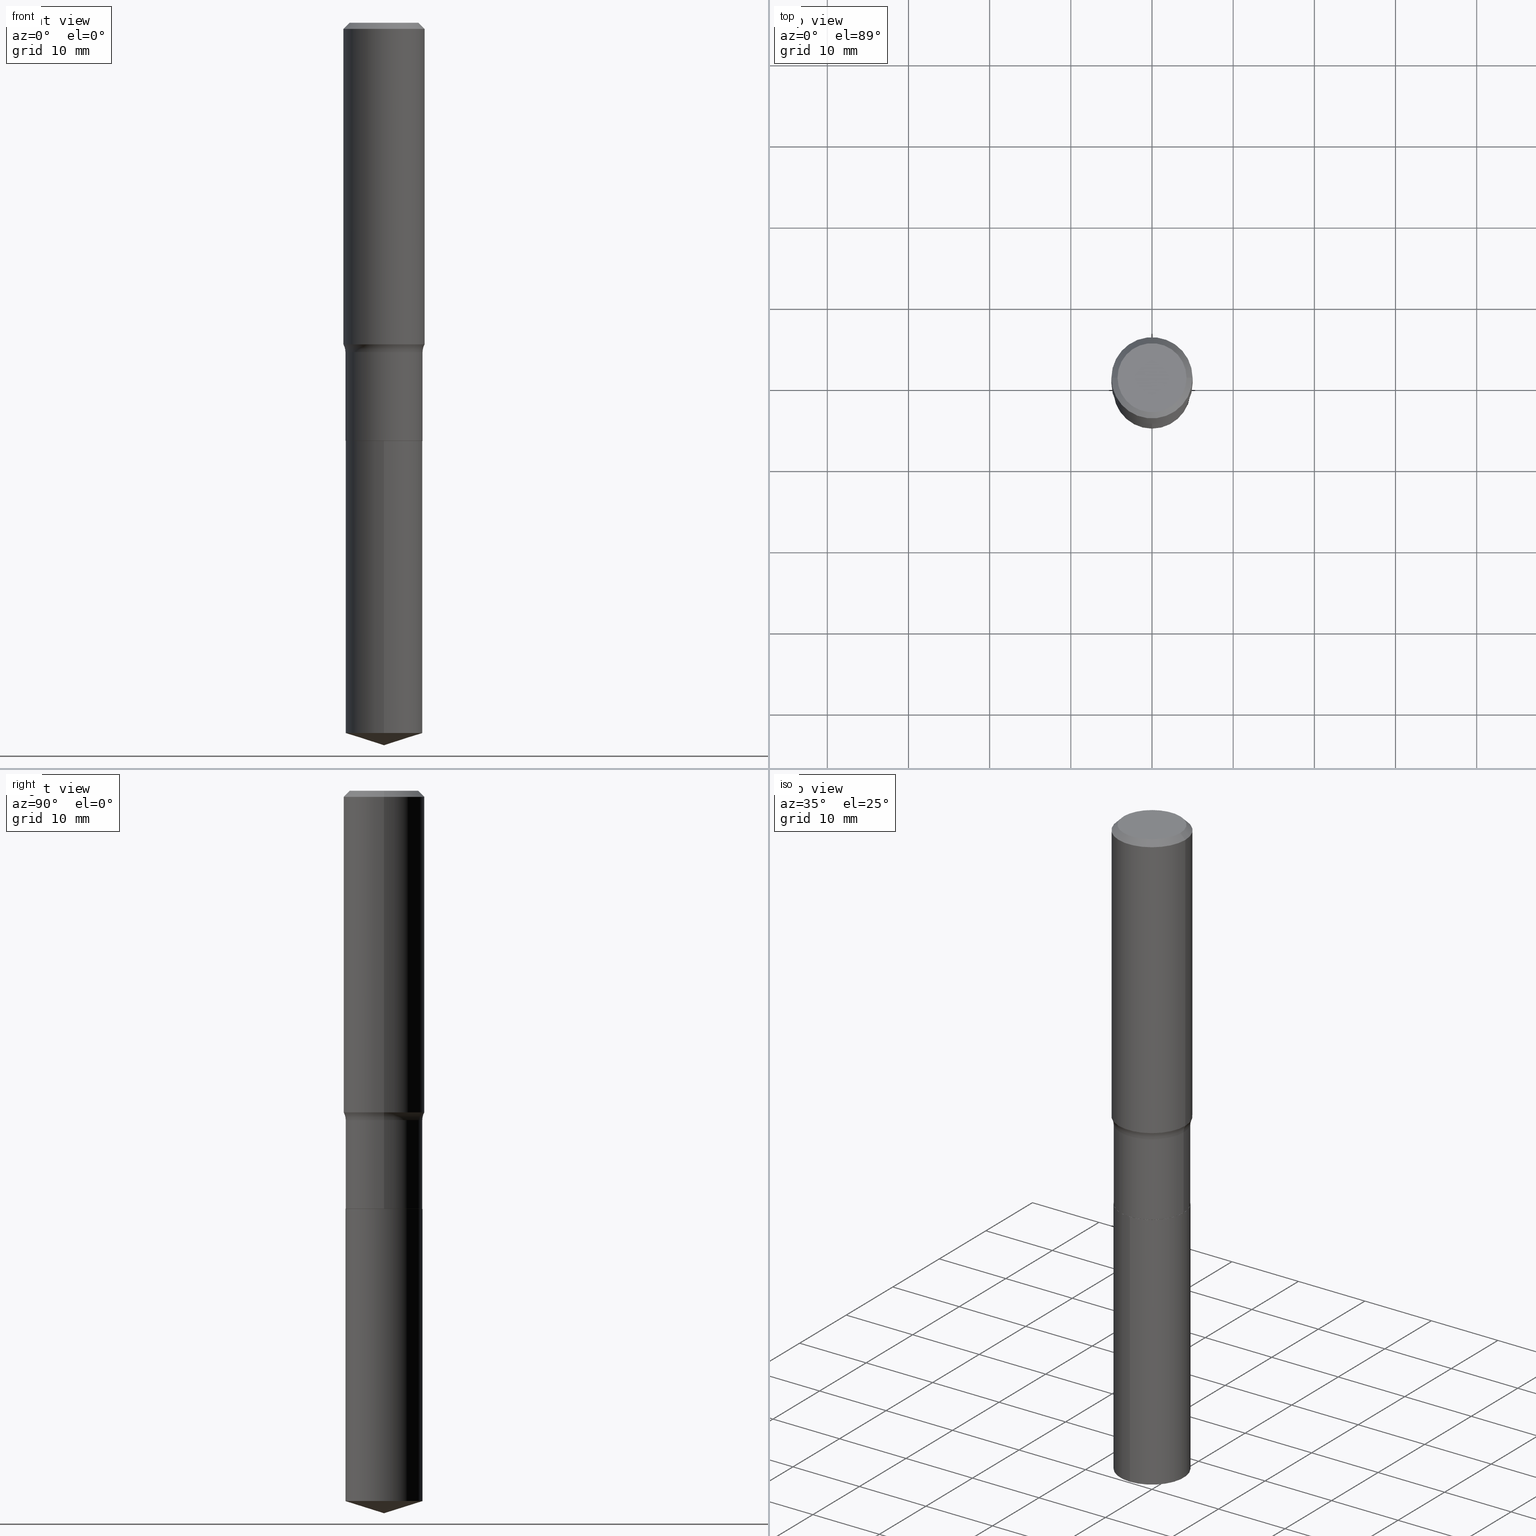
[diagram: canonical four-view strip — front | top / right | iso, engineering-drawing reading convention]
A machine part, canonical four-view strip (front | top / right | iso — engineering-drawing reading convention). The complete STEP part file that produces these views, byte-faithful:
ISO-10303-21;
HEADER;
FILE_DESCRIPTION (( 'STEP AP203' ),
    '1' );
FILE_NAME ('63187.STEP',
    '2024-04-19T15:00:19',
    ( '' ),
    ( '' ),
    'SwSTEP 2.0',
    'SolidWorks 2023',
    '' );
FILE_SCHEMA (( 'CONFIG_CONTROL_DESIGN' ));
ENDSEC;

DATA;
#1 = DIRECTION ( 'NONE',  ( -2.445468806185136597E-29, 3.491481338843145583E-15, 1.000000000000000000 ) ) ;
#2 = CARTESIAN_POINT ( 'NONE',  ( -0.1869999999999999996, -4.998547566380161442E-15, -2.027000000000000135 ) ) ;
#3 = VERTEX_POINT ( 'NONE', #422 ) ;
#4 = CARTESIAN_POINT ( 'NONE',  ( 7.220858017463209485E-31, -1.030947152326916609E-16, -0.02952750000000019595 ) ) ;
#5 = VERTEX_POINT ( 'NONE', #268 ) ;
#6 = CARTESIAN_POINT ( 'NONE',  ( 1.328714915871471555E-15, 0.1869999999999929496, -2.027500000000000302 ) ) ;
#7 = CALENDAR_DATE ( 2024, 19, 4 ) ;
#8 = ORIENTED_EDGE ( 'NONE', *, *, #434, .T. ) ;
#9 = FACE_OUTER_BOUND ( 'NONE', #384, .T. ) ;
#10 = EDGE_CURVE ( 'NONE', #168, #40, #382, .T. ) ;
#11 = EDGE_LOOP ( 'NONE', ( #416, #377, #58, #98 ) ) ;
#12 = DIRECTION ( 'NONE',  ( 1.000000000000000000, -6.982962677686265133E-15, 0.000000000000000000 ) ) ;
#13 = COORDINATED_UNIVERSAL_TIME_OFFSET ( 5, 0, .BEHIND. ) ;
#14 = AXIS2_PLACEMENT_3D ( 'NONE', #125, #261, #35 ) ;
#15 = AXIS2_PLACEMENT_3D ( 'NONE', #197, #381, #356 ) ;
#16 = FACE_OUTER_BOUND ( 'NONE', #170, .T. ) ;
#17 = PERSON_AND_ORGANIZATION_ROLE ( 'creator' ) ;
#18 = ADVANCED_FACE ( 'NONE', ( #147 ), #56, .T. ) ;
#19 = EDGE_CURVE ( 'NONE', #258, #355, #324, .T. ) ;
#20 = ORIENTED_EDGE ( 'NONE', *, *, #212, .T. ) ;
#21 = FACE_OUTER_BOUND ( 'NONE', #424, .T. ) ;
#22 = ORIENTED_EDGE ( 'NONE', *, *, #172, .T. ) ;
#23 = AXIS2_PLACEMENT_3D ( 'NONE', #429, #486, #225 ) ;
#24 =( LENGTH_UNIT ( ) NAMED_UNIT ( * ) SI_UNIT ( $, .METRE. ) );
#25 = EDGE_CURVE ( 'NONE', #335, #68, #336, .T. ) ;
#26 =( NAMED_UNIT ( * ) SI_UNIT ( $, .STERADIAN. ) SOLID_ANGLE_UNIT ( ) );
#27 = DIRECTION ( 'NONE',  ( -2.445146056917443157E-29, 3.491943534164230520E-15, 1.000000000000000000 ) ) ;
#28 = ORIENTED_EDGE ( 'NONE', *, *, #82, .T. ) ;
#29 = AXIS2_PLACEMENT_3D ( 'NONE', #88, #57, #450 ) ;
#30 = EDGE_CURVE ( 'NONE', #355, #370, #371, .T. ) ;
#31 = COORDINATED_UNIVERSAL_TIME_OFFSET ( 5, 0, .BEHIND. ) ;
#32 = LINE ( 'NONE', #179, #207 ) ;
#33 = AXIS2_PLACEMENT_3D ( 'NONE', #259, #63, #293 ) ;
#34 = ORIENTED_EDGE ( 'NONE', *, *, #223, .T. ) ;
#35 = DIRECTION ( 'NONE',  ( 1.000000000000000000, -6.982962677686266711E-15, 0.000000000000000000 ) ) ;
#36 = DIRECTION ( 'NONE',  ( -0.7071067811864267805, 7.493145998869918709E-15, 0.7071067811866682540 ) ) ;
#37 = ORIENTED_EDGE ( 'NONE', *, *, #46, .T. ) ;
#38 = DIRECTION ( 'NONE',  ( -2.445146056917442877E-29, 3.491943534164230520E-15, 1.000000000000000000 ) ) ;
#39 = VERTEX_POINT ( 'NONE', #174 ) ;
#40 = VERTEX_POINT ( 'NONE', #169 ) ;
#41 = CARTESIAN_POINT ( 'NONE',  ( 0.000000000000000000, 0.000000000000000000, 0.000000000000000000 ) ) ;
#42 = ADVANCED_FACE ( 'NONE', ( #334 ), #201, .F. ) ;
#43 = ORIENTED_EDGE ( 'NONE', *, *, #444, .T. ) ;
#44 = FACE_OUTER_BOUND ( 'NONE', #316, .T. ) ;
#45 = DIRECTION ( 'NONE',  ( -1.000000000000000000, 6.982962677686266711E-15, 0.000000000000000000 ) ) ;
#46 = EDGE_CURVE ( 'NONE', #39, #474, #436, .T. ) ;
#47 = AXIS2_PLACEMENT_3D ( 'NONE', #368, #481, #178 ) ;
#48 = DIRECTION ( 'NONE',  ( -2.445468806185136597E-29, 3.491481338843145583E-15, 1.000000000000000000 ) ) ;
#49 = AXIS2_PLACEMENT_3D ( 'NONE', #471, #48, #320 ) ;
#50 = CC_DESIGN_PERSON_AND_ORGANIZATION_ASSIGNMENT ( #72, #228, ( #112 ) ) ;
#51 = CARTESIAN_POINT ( 'NONE',  ( 0.2649999999999999578, -7.427777400254900530E-15, -1.597399999999999709 ) ) ;
#52 = ORIENTED_EDGE ( 'NONE', *, *, #206, .T. ) ;
#53 = CARTESIAN_POINT ( 'NONE',  ( -0.1968500000000001082, 1.398703375343757985E-15, -9.682923725166787881E-30 ) ) ;
#54 = CC_DESIGN_PERSON_AND_ORGANIZATION_ASSIGNMENT ( #301, #485, ( #278 ) ) ;
#55 = ORIENTED_EDGE ( 'NONE', *, *, #313, .T. ) ;
#56 = CONICAL_SURFACE ( 'NONE', #191, 124.8659371009148060, 1.265363707695891016 ) ;
#57 = DIRECTION ( 'NONE',  ( -2.445146056917442877E-29, 3.491943534164230520E-15, 1.000000000000000000 ) ) ;
#58 = ORIENTED_EDGE ( 'NONE', *, *, #434, .F. ) ;
#59 = DIRECTION ( 'NONE',  ( -2.445468806185136597E-29, 3.491481338843145583E-15, 1.000000000000000000 ) ) ;
#60 = APPROVAL_ROLE ( '' ) ;
#61 = CARTESIAN_POINT ( 'NONE',  ( -8.769739114905202886E-28, 1.252436080478850042E-13, 35.86617874015747987 ) ) ;
#62 = ORIENTED_EDGE ( 'NONE', *, *, #162, .F. ) ;
#63 = DIRECTION ( 'NONE',  ( 7.105427357601001859E-15, 1.000000000000000000, -3.491481338843145583E-15 ) ) ;
#64 = AXIS2_PLACEMENT_3D ( 'NONE', #239, #217, #280 ) ;
#65 = DIRECTION ( 'NONE',  ( -2.445468806185136597E-29, 3.491481338843145583E-15, 1.000000000000000000 ) ) ;
#66 = CYLINDRICAL_SURFACE ( 'NONE', #15, 0.1869999999999999718 ) ;
#67 = CIRCLE ( 'NONE', #33, 0.07800000000000002764 ) ;
#68 = VERTEX_POINT ( 'NONE', #442 ) ;
#69 = DIRECTION ( 'NONE',  ( 1.000000000000000000, -6.982962677686266711E-15, 0.000000000000000000 ) ) ;
#70 = ORIENTED_EDGE ( 'NONE', *, *, #392, .F. ) ;
#71 = CARTESIAN_POINT ( 'NONE',  ( 0.1864999999999999991, -8.381300953892967589E-15, -2.027500000000000302 ) ) ;
#72 = PERSON_AND_ORGANIZATION ( #437, #396 ) ;
#73 = EDGE_LOOP ( 'NONE', ( #70, #28, #306, #226 ) ) ;
#74 = DIRECTION ( 'NONE',  ( -2.445146056917443157E-29, 3.491943534164230520E-15, 1.000000000000000000 ) ) ;
#75 = EDGE_CURVE ( 'NONE', #168, #445, #379, .T. ) ;
#76 = ORIENTED_EDGE ( 'NONE', *, *, #162, .T. ) ;
#77 = CARTESIAN_POINT ( 'NONE',  ( 4.958188004540364383E-29, -7.078978414504477806E-15, -2.027499999999999858 ) ) ;
#78 = DIRECTION ( 'NONE',  ( -2.445146056917442877E-29, 3.491943534164230520E-15, 1.000000000000000000 ) ) ;
#79 = ADVANCED_FACE ( 'NONE', ( #21 ), #163, .F. ) ;
#80 = PERSON_AND_ORGANIZATION ( #437, #396 ) ;
#81 = PLANE ( 'NONE',  #23 ) ;
#82 = EDGE_CURVE ( 'NONE', #445, #5, #439, .T. ) ;
#83 = AXIS2_PLACEMENT_3D ( 'NONE', #41, #353, #150 ) ;
#84 = VECTOR ( 'NONE', #428, 39.37007874015748143 ) ;
#85 = EDGE_CURVE ( 'NONE', #249, #40, #404, .T. ) ;
#86 = CARTESIAN_POINT ( 'NONE',  ( 0.1968500000000000527, -1.453583746094018101E-15, -0.02952750000000019595 ) ) ;
#87 = ORIENTED_EDGE ( 'NONE', *, *, #350, .F. ) ;
#88 = CARTESIAN_POINT ( 'NONE',  ( 4.958188004540364383E-29, -7.078978414504477806E-15, -2.027499999999999858 ) ) ;
#89 = AXIS2_PLACEMENT_3D ( 'NONE', #296, #1, #267 ) ;
#90 = ORIENTED_EDGE ( 'NONE', *, *, #290, .F. ) ;
#91 = DIRECTION ( 'NONE',  ( -2.445468806185136597E-29, 3.491481338843145583E-15, 1.000000000000000000 ) ) ;
#92 = APPLICATION_PROTOCOL_DEFINITION ( 'international standard', 'config_control_design', 1994, #159 ) ;
#93 = CARTESIAN_POINT ( 'NONE',  ( 4.958188004540364383E-29, -7.078978414504477806E-15, -2.027499999999999858 ) ) ;
#94 = ORIENTED_EDGE ( 'NONE', *, *, #483, .T. ) ;
#95 = DIRECTION ( 'NONE',  ( -1.000000000000000000, 6.982962677686265922E-15, -4.876176775795935793E-29 ) ) ;
#96 = CARTESIAN_POINT ( 'NONE',  ( 4.958188004540364383E-29, -7.078978414504478595E-15, -2.027500000000000302 ) ) ;
#97 = DIRECTION ( 'NONE',  ( -2.445146056917442877E-29, 3.491943534164230520E-15, 1.000000000000000000 ) ) ;
#98 = ORIENTED_EDGE ( 'NONE', *, *, #281, .F. ) ;
#99 = DIRECTION ( 'NONE',  ( -6.982962677686266711E-15, -1.000000000000000000, 2.921762560068730595E-15 ) ) ;
#100 = CONICAL_SURFACE ( 'NONE', #220, 124.8659371009148060, 1.265363707695891016 ) ;
#101 = LOCAL_TIME ( 11, 0, 19.00000000000000000, #192 ) ;
#102 = DIRECTION ( 'NONE',  ( 1.000000000000000000, -6.982962677686268288E-15, 0.000000000000000000 ) ) ;
#103 = CARTESIAN_POINT ( 'NONE',  ( 0.1864999999999999991, -8.381300953892967589E-15, -2.027500000000000302 ) ) ;
#104 = VECTOR ( 'NONE', #361, 39.37007874015748143 ) ;
#105 = ORIENTED_EDGE ( 'NONE', *, *, #82, .F. ) ;
#106 = DIRECTION ( 'NONE',  ( 6.776566513254256560E-15, 0.9537169507482285979, 0.3007057995042677900 ) ) ;
#107 = ADVANCED_FACE ( 'NONE', ( #16 ), #81, .F. ) ;
#108 = ORIENTED_EDGE ( 'NONE', *, *, #212, .F. ) ;
#109 = EDGE_LOOP ( 'NONE', ( #105, #124, #410, #55 ) ) ;
#110 = PERSON_AND_ORGANIZATION ( #437, #396 ) ;
#111 = ORIENTED_EDGE ( 'NONE', *, *, #152, .F. ) ;
#112 = PRODUCT_DEFINITION ( 'UNKNOWN', '', #190, #480 ) ;
#113 = FACE_OUTER_BOUND ( 'NONE', #251, .T. ) ;
#114 = CARTESIAN_POINT ( 'NONE',  ( -0.1673224999999999851, 1.219954130253505460E-15, 4.096137381439757534E-18 ) ) ;
#115 = CARTESIAN_POINT ( 'NONE',  ( 4.958188004540364383E-29, -7.078978414504478595E-15, -2.027500000000000302 ) ) ;
#116 = ADVANCED_FACE ( 'NONE', ( #200 ), #490, .T. ) ;
#117 = VECTOR ( 'NONE', #453, 39.37007874015748143 ) ;
#118 = ORIENTED_EDGE ( 'NONE', *, *, #392, .T. ) ;
#119 = LOCAL_TIME ( 11, 0, 19.00000000000000000, #315 ) ;
#120 = VECTOR ( 'NONE', #27, 39.37007874015748143 ) ;
#121 = ADVANCED_FACE ( 'NONE', ( #157 ), #100, .T. ) ;
#122 = AXIS2_PLACEMENT_3D ( 'NONE', #215, #38, #99 ) ;
#123 = DIRECTION ( 'NONE',  ( 1.000000000000000000, -6.982962677686265922E-15, 4.876176775795935793E-29 ) ) ;
#124 = ORIENTED_EDGE ( 'NONE', *, *, #75, .F. ) ;
#125 = CARTESIAN_POINT ( 'NONE',  ( 7.220858017463209485E-31, -1.030947152326916609E-16, -0.02952750000000019595 ) ) ;
#126 = EDGE_LOOP ( 'NONE', ( #196, #52, #94, #388 ) ) ;
#127 = CARTESIAN_POINT ( 'NONE',  ( 0.000000000000000000, 0.000000000000000000, 0.000000000000000000 ) ) ;
#128 = DIRECTION ( 'NONE',  ( -2.445468806185136597E-29, 3.491481338843145583E-15, 1.000000000000000000 ) ) ;
#129 = CIRCLE ( 'NONE', #14, 0.1968500000000000527 ) ;
#130 = VECTOR ( 'NONE', #420, 39.37007874015748143 ) ;
#131 = TOROIDAL_SURFACE ( 'NONE', #310, 0.2649999999999999578, 0.07800000000000004152 ) ;
#132 = CYLINDRICAL_SURFACE ( 'NONE', #47, 0.1968500000000001082 ) ;
#133 = DIRECTION ( 'NONE',  ( -2.445146056917442877E-29, 3.491943534164230520E-15, 1.000000000000000000 ) ) ;
#134 = APPROVAL ( #256, 'UNSPECIFIED' ) ;
#135 = ORIENTED_EDGE ( 'NONE', *, *, #483, .F. ) ;
#136 = LENGTH_MEASURE_WITH_UNIT ( LENGTH_MEASURE( 0.02539999999999999897 ), #24 );
#137 = DIRECTION ( 'NONE',  ( -2.445468806185136597E-29, 3.491481338843145583E-15, 1.000000000000000000 ) ) ;
#138 = EDGE_LOOP ( 'NONE', ( #467, #22, #408, #403 ) ) ;
#139 = CARTESIAN_POINT ( 'NONE',  ( 0.1869999999999999718, -1.305814020727331607E-15, 9.118450570738398307E-30 ) ) ;
#140 = CARTESIAN_POINT ( 'NONE',  ( 0.1869999999999999996, -8.383046694562388303E-15, -2.027000000000000135 ) ) ;
#141 = FACE_OUTER_BOUND ( 'NONE', #73, .T. ) ;
#142 = CARTESIAN_POINT ( 'NONE',  ( 8.424033695572536525E-29, -1.202859580728641692E-14, -3.444939126479630076 ) ) ;
#143 = DIRECTION ( 'NONE',  ( -2.445468806185136597E-29, 3.491481338843145583E-15, 1.000000000000000000 ) ) ;
#144 = ADVANCED_FACE ( 'NONE', ( #113 ), #131, .F. ) ;
#145 = CIRCLE ( 'NONE', #89, 0.1869999999999999440 ) ;
#146 = AXIS2_PLACEMENT_3D ( 'NONE', #302, #318, #205 ) ;
#147 = FACE_OUTER_BOUND ( 'NONE', #482, .T. ) ;
#148 = DATE_AND_TIME ( #393, #161 ) ;
#149 = ORIENTED_EDGE ( 'NONE', *, *, #172, .F. ) ;
#150 = DIRECTION ( 'NONE',  ( 1.000000000000000000, -6.982962677686266711E-15, 4.876176775795935793E-29 ) ) ;
#151 = PERSON_AND_ORGANIZATION ( #437, #396 ) ;
#152 = EDGE_CURVE ( 'NONE', #189, #413, #264, .T. ) ;
#153 = ORIENTED_EDGE ( 'NONE', *, *, #300, .F. ) ;
#154 = CARTESIAN_POINT ( 'NONE',  ( -0.1968500000000001915, -4.046115952304854648E-15, -1.559458235412674032 ) ) ;
#155 = APPROVAL_STATUS ( 'not_yet_approved' ) ;
#156 = CIRCLE ( 'NONE', #49, 0.1869999999999999440 ) ;
#157 = FACE_OUTER_BOUND ( 'NONE', #331, .T. ) ;
#158 = DATE_AND_TIME ( #7, #101 ) ;
#159 = APPLICATION_CONTEXT ( 'configuration controlled 3d designs of mechanical parts and assemblies' ) ;
#160 = ADVANCED_FACE ( 'NONE', ( #241 ), #394, .T. ) ;
#161 = LOCAL_TIME ( 11, 0, 19.00000000000000000, #277 ) ;
#162 = EDGE_CURVE ( 'NONE', #3, #474, #156, .T. ) ;
#163 = PLANE ( 'NONE',  #287 ) ;
#164 = AXIS2_PLACEMENT_3D ( 'NONE', #345, #143, #181 ) ;
#165 = CC_DESIGN_APPROVAL ( #454, ( #415 ) ) ;
#166 = CIRCLE ( 'NONE', #469, 0.1968500000000000527 ) ;
#167 =( CONVERSION_BASED_UNIT ( 'INCH', #136 ) LENGTH_UNIT ( ) NAMED_UNIT ( #430 ) );
#168 = VERTEX_POINT ( 'NONE', #114 ) ;
#169 = CARTESIAN_POINT ( 'NONE',  ( -0.1968500000000000527, -1.375253646096893681E-15, -0.02952750000000019595 ) ) ;
#170 = EDGE_LOOP ( 'NONE', ( #8, #211 ) ) ;
#171 = FACE_OUTER_BOUND ( 'NONE', #488, .T. ) ;
#172 = EDGE_CURVE ( 'NONE', #355, #258, #369, .T. ) ;
#173 = MECHANICAL_CONTEXT ( 'NONE', #476, 'mechanical' ) ;
#174 = CARTESIAN_POINT ( 'NONE',  ( 0.1968500000000001915, -6.819415530751155622E-15, -1.559458235412674032 ) ) ;
#175 = ORIENTED_EDGE ( 'NONE', *, *, #290, .T. ) ;
#176 =( GEOMETRIC_REPRESENTATION_CONTEXT ( 3 ) GLOBAL_UNCERTAINTY_ASSIGNED_CONTEXT ( ( #295 ) ) GLOBAL_UNIT_ASSIGNED_CONTEXT ( ( #167, #183, #26 ) ) REPRESENTATION_CONTEXT ( 'NONE', 'WORKASPACE' ) );
#177 = MANIFOLD_SOLID_BREP ( 'Body-Move/Copy2[1]', #478 ) ;
#178 = DIRECTION ( 'NONE',  ( 1.000000000000000000, -6.982962677686266711E-15, 4.876176775795935793E-29 ) ) ;
#179 = CARTESIAN_POINT ( 'NONE',  ( -0.1864999999999999991, -5.753816212311890965E-15, -2.027500000000000302 ) ) ;
#180 = ORIENTED_EDGE ( 'NONE', *, *, #25, .F. ) ;
#181 = DIRECTION ( 'NONE',  ( 1.000000000000000000, -6.982962677686268288E-15, 0.000000000000000000 ) ) ;
#182 = MANIFOLD_SOLID_BREP ( 'Body-Move/Copy2[2]', #243 ) ;
#183 =( NAMED_UNIT ( * ) PLANE_ANGLE_UNIT ( ) SI_UNIT ( $, .RADIAN. ) );
#184 = CARTESIAN_POINT ( 'NONE',  ( 3.906391871000136996E-29, -5.577292290668039694E-15, -1.597399999999999709 ) ) ;
#185 = CARTESIAN_POINT ( 'NONE',  ( -8.769739114905202886E-28, 1.252436080478850042E-13, 35.86617874015747987 ) ) ;
#186 = CARTESIAN_POINT ( 'NONE',  ( 8.568867493291091707E-29, -1.223354674733104765E-14, -3.503899999999999793 ) ) ;
#187 = EDGE_CURVE ( 'NONE', #189, #3, #375, .T. ) ;
#188 = SHAPE_DEFINITION_REPRESENTATION ( #199, #358 ) ;
#189 = VERTEX_POINT ( 'NONE', #2 ) ;
#190 = PRODUCT_DEFINITION_FORMATION_WITH_SPECIFIED_SOURCE ( 'ANY', '', #278, .NOT_KNOWN. ) ;
#191 = AXIS2_PLACEMENT_3D ( 'NONE', #185, #344, #311 ) ;
#192 = COORDINATED_UNIVERSAL_TIME_OFFSET ( 5, 0, .BEHIND. ) ;
#193 = ORIENTED_EDGE ( 'NONE', *, *, #329, .T. ) ;
#194 = CYLINDRICAL_SURFACE ( 'NONE', #83, 0.1869999999999999718 ) ;
#195 = CALENDAR_DATE ( 2024, 19, 4 ) ;
#196 = ORIENTED_EDGE ( 'NONE', *, *, #85, .F. ) ;
#197 = CARTESIAN_POINT ( 'NONE',  ( 0.000000000000000000, 0.000000000000000000, 0.000000000000000000 ) ) ;
#198 = APPROVAL_STATUS ( 'not_yet_approved' ) ;
#199 = PRODUCT_DEFINITION_SHAPE ( 'NONE', 'NONE',  #112 ) ;
#200 = FACE_OUTER_BOUND ( 'NONE', #126, .T. ) ;
#201 = TOROIDAL_SURFACE ( 'NONE', #325, 0.2649999999999999578, 0.07800000000000004152 ) ;
#202 = SECURITY_CLASSIFICATION_LEVEL ( 'unclassified' ) ;
#203 = AXIS2_PLACEMENT_3D ( 'NONE', #421, #385, #463 ) ;
#204 = VECTOR ( 'NONE', #106, 39.37007874015748143 ) ;
#205 = DIRECTION ( 'NONE',  ( 1.000000000000000000, -6.982962677686266711E-15, 0.000000000000000000 ) ) ;
#206 = EDGE_CURVE ( 'NONE', #249, #39, #427, .T. ) ;
#207 = VECTOR ( 'NONE', #36, 39.37007874015748143 ) ;
#208 = ADVANCED_FACE ( 'NONE', ( #141 ), #456, .T. ) ;
#209 = DIRECTION ( 'NONE',  ( -2.445468806185136597E-29, 3.491481338843145583E-15, 1.000000000000000000 ) ) ;
#210 = ORIENTED_EDGE ( 'NONE', *, *, #75, .T. ) ;
#211 = ORIENTED_EDGE ( 'NONE', *, *, #244, .T. ) ;
#212 = EDGE_CURVE ( 'NONE', #335, #413, #297, .T. ) ;
#213 = DIRECTION ( 'NONE',  ( -2.445468806185136597E-29, 3.491481338843145583E-15, 1.000000000000000000 ) ) ;
#214 = ORIENTED_EDGE ( 'NONE', *, *, #236, .F. ) ;
#215 = CARTESIAN_POINT ( 'NONE',  ( 4.958188004540364383E-29, -7.078978414504477806E-15, -2.027499999999999858 ) ) ;
#216 = PERSON_AND_ORGANIZATION ( #437, #396 ) ;
#217 = DIRECTION ( 'NONE',  ( -2.445468806185136597E-29, 3.491481338843145583E-15, 1.000000000000000000 ) ) ;
#218 = EDGE_LOOP ( 'NONE', ( #367, #34, #214, #108 ) ) ;
#219 = LINE ( 'NONE', #411, #117 ) ;
#220 = AXIS2_PLACEMENT_3D ( 'NONE', #61, #133, #457 ) ;
#221 = CIRCLE ( 'NONE', #399, 0.1673224999999999851 ) ;
#222 = CIRCLE ( 'NONE', #418, 0.1968500000000001915 ) ;
#223 = EDGE_CURVE ( 'NONE', #68, #189, #32, .T. ) ;
#224 = DIRECTION ( 'NONE',  ( -2.445468806185136597E-29, 3.491481338843145583E-15, 1.000000000000000000 ) ) ;
#225 = DIRECTION ( 'NONE',  ( 6.982962677686265922E-15, 1.000000000000000000, -3.491943534164230520E-15 ) ) ;
#226 = ORIENTED_EDGE ( 'NONE', *, *, #10, .F. ) ;
#227 = LINE ( 'NONE', #186, #204 ) ;
#228 = PERSON_AND_ORGANIZATION_ROLE ( 'creator' ) ;
#229 = ORIENTED_EDGE ( 'NONE', *, *, #492, .F. ) ;
#230 = CARTESIAN_POINT ( 'NONE',  ( -1.305814020727282303E-15, -0.1870000000000070772, -2.027499999999999414 ) ) ;
#231 = DATE_AND_TIME ( #282, #283 ) ;
#232 = ORIENTED_EDGE ( 'NONE', *, *, #444, .F. ) ;
#233 = VECTOR ( 'NONE', #74, 39.37007874015748143 ) ;
#234 = CALENDAR_DATE ( 2024, 19, 4 ) ;
#235 = EDGE_LOOP ( 'NONE', ( #314, #448, #229, #135 ) ) ;
#236 = EDGE_CURVE ( 'NONE', #413, #189, #397, .T. ) ;
#237 = CARTESIAN_POINT ( 'NONE',  ( 8.424033695572536525E-29, -1.202859580728641692E-14, -3.444939126479630076 ) ) ;
#238 = DATE_AND_TIME ( #234, #119 ) ;
#239 = CARTESIAN_POINT ( 'NONE',  ( 0.000000000000000000, 0.000000000000000000, 0.000000000000000000 ) ) ;
#240 = PERSON_AND_ORGANIZATION_ROLE ( 'design_supplier' ) ;
#241 = FACE_OUTER_BOUND ( 'NONE', #138, .T. ) ;
#242 = AXIS2_PLACEMENT_3D ( 'NONE', #299, #271, #95 ) ;
#243 = CLOSED_SHELL ( 'NONE', ( #426, #208, #473, #42, #246, #386, #144, #116, #362, #274, #79, #253 ) ) ;
#244 = EDGE_CURVE ( 'NONE', #370, #328, #266, .T. ) ;
#245 = CONICAL_SURFACE ( 'NONE', #203, 0.1968500000000000527, 0.7853981633974459475 ) ;
#246 = ADVANCED_FACE ( 'NONE', ( #44 ), #66, .T. ) ;
#247 = AXIS2_PLACEMENT_3D ( 'NONE', #51, #292, #402 ) ;
#248 = CARTESIAN_POINT ( 'NONE',  ( 1.328714915871436648E-15, 0.1869999999999929496, -2.027500000000000302 ) ) ;
#249 = VERTEX_POINT ( 'NONE', #154 ) ;
#250 = DIRECTION ( 'NONE',  ( 0.7071067811865459074, -7.319954787623251312E-15, -0.7071067811865492381 ) ) ;
#251 = EDGE_LOOP ( 'NONE', ( #90, #87, #37, #263 ) ) ;
#252 = CARTESIAN_POINT ( 'NONE',  ( 0.1673224999999999851, -1.300749711163072594E-15, 4.096137381456741925E-18 ) ) ;
#253 = ADVANCED_FACE ( 'NONE', ( #284 ), #395, .T. ) ;
#254 = CARTESIAN_POINT ( 'NONE',  ( -1.001697619218021790E-46, 1.430158722866389718E-32, 4.096137381448108366E-18 ) ) ;
#255 = ORIENTED_EDGE ( 'NONE', *, *, #236, .T. ) ;
#256 = APPROVAL_STATUS ( 'not_yet_approved' ) ;
#257 = DIRECTION ( 'NONE',  ( 1.000000000000000000, -6.982962677686267499E-15, 4.883557194083114022E-29 ) ) ;
#258 = VERTEX_POINT ( 'NONE', #449 ) ;
#259 = CARTESIAN_POINT ( 'NONE',  ( -0.2649999999999999578, -3.694354040903774895E-15, -1.597399999999999709 ) ) ;
#260 = APPROVAL ( #155, 'UNSPECIFIED' ) ;
#261 = DIRECTION ( 'NONE',  ( -2.445468806185136597E-29, 3.491481338843145583E-15, 1.000000000000000000 ) ) ;
#262 = DIRECTION ( 'NONE',  ( -6.982962677686266711E-15, -1.000000000000000000, 2.921762560068730595E-15 ) ) ;
#263 = ORIENTED_EDGE ( 'NONE', *, *, #398, .T. ) ;
#264 = CIRCLE ( 'NONE', #443, 0.1869999999999999996 ) ;
#265 = AXIS2_PLACEMENT_3D ( 'NONE', #96, #224, #102 ) ;
#266 = CIRCLE ( 'NONE', #359, 0.1869999999999999996 ) ;
#267 = DIRECTION ( 'NONE',  ( 1.000000000000000000, -6.982962677686267499E-15, 0.000000000000000000 ) ) ;
#268 = CARTESIAN_POINT ( 'NONE',  ( 0.1968500000000000527, -1.477690918335233688E-15, -0.02952750000000019595 ) ) ;
#269 = FACE_OUTER_BOUND ( 'NONE', #109, .T. ) ;
#270 = ORIENTED_EDGE ( 'NONE', *, *, #300, .T. ) ;
#271 = DIRECTION ( 'NONE',  ( 2.438088387897960049E-29, -3.491481338843145188E-15, -1.000000000000000000 ) ) ;
#272 = PERSON_AND_ORGANIZATION ( #437, #396 ) ;
#273 = ORIENTED_EDGE ( 'NONE', *, *, #357, .T. ) ;
#274 = ADVANCED_FACE ( 'NONE', ( #171 ), #423, .F. ) ;
#275 = DIRECTION ( 'NONE',  ( -6.982962677686266711E-15, -1.000000000000000000, 2.921762560068730595E-15 ) ) ;
#276 = AXIS2_PLACEMENT_3D ( 'NONE', #254, #209, #365 ) ;
#277 = COORDINATED_UNIVERSAL_TIME_OFFSET ( 5, 0, .BEHIND. ) ;
#278 = PRODUCT ( '63187', '63187', '', ( #173 ) ) ;
#279 = DIRECTION ( 'NONE',  ( -2.445146056917442877E-29, 3.491943534164230520E-15, 1.000000000000000000 ) ) ;
#280 = DIRECTION ( 'NONE',  ( 1.000000000000000000, -6.982962677686266711E-15, 4.876176775795935793E-29 ) ) ;
#281 = EDGE_CURVE ( 'NONE', #258, #328, #417, .T. ) ;
#282 = CALENDAR_DATE ( 2024, 19, 4 ) ;
#283 = LOCAL_TIME ( 11, 0, 19.00000000000000000, #13 ) ;
#284 = FACE_OUTER_BOUND ( 'NONE', #390, .T. ) ;
#285 = AXIS2_PLACEMENT_3D ( 'NONE', #93, #78, #470 ) ;
#286 = AXIS2_PLACEMENT_3D ( 'NONE', #115, #432, #407 ) ;
#287 = AXIS2_PLACEMENT_3D ( 'NONE', #326, #479, #123 ) ;
#288 = ORIENTED_EDGE ( 'NONE', *, *, #187, .T. ) ;
#289 = DIRECTION ( 'NONE',  ( 1.000000000000000000, -6.982962677686267499E-15, 4.883557194083114022E-29 ) ) ;
#290 = EDGE_CURVE ( 'NONE', #249, #3, #67, .T. ) ;
#291 = CARTESIAN_POINT ( 'NONE',  ( 0.1869999999999999440, -6.883106311395371695E-15, -1.597399999999999709 ) ) ;
#292 = DIRECTION ( 'NONE',  ( -6.982962677686266711E-15, -1.000000000000000000, 3.491481338843145583E-15 ) ) ;
#293 = DIRECTION ( 'NONE',  ( -1.000000000000000000, 7.105427357601001859E-15, 0.000000000000000000 ) ) ;
#294 = VECTOR ( 'NONE', #307, 39.37007874015748143 ) ;
#295 = UNCERTAINTY_MEASURE_WITH_UNIT (LENGTH_MEASURE( 1.000000000000000082E-05 ), #167, 'distance_accuracy_value', 'NONE');
#296 = CARTESIAN_POINT ( 'NONE',  ( 3.906391871000136996E-29, -5.577292290668039694E-15, -1.597399999999999709 ) ) ;
#297 = LINE ( 'NONE', #103, #84 ) ;
#298 = ORIENTED_EDGE ( 'NONE', *, *, #46, .F. ) ;
#299 = CARTESIAN_POINT ( 'NONE',  ( -5.008488096090108951E-47, 7.150793614331948590E-33, 2.048068690724054183E-18 ) ) ;
#300 = EDGE_CURVE ( 'NONE', #413, #474, #446, .T. ) ;
#301 = PERSON_AND_ORGANIZATION ( #437, #396 ) ;
#302 = CARTESIAN_POINT ( 'NONE',  ( 3.813606469250211988E-29, -5.444819327648612436E-15, -1.559458235412674032 ) ) ;
#303 = ORIENTED_EDGE ( 'NONE', *, *, #206, .F. ) ;
#304 = DIRECTION ( 'NONE',  ( 1.000000000000000000, -6.982962677686267499E-15, 4.876294436782262290E-29 ) ) ;
#305 = DIRECTION ( 'NONE',  ( 2.445468806185136597E-29, -3.491481338843145583E-15, -1.000000000000000000 ) ) ;
#306 = ORIENTED_EDGE ( 'NONE', *, *, #492, .T. ) ;
#307 = DIRECTION ( 'NONE',  ( -2.445468806185136877E-29, 3.491481338843145188E-15, 1.000000000000000000 ) ) ;
#308 = CC_DESIGN_APPROVAL ( #260, ( #190 ) ) ;
#309 = VECTOR ( 'NONE', #330, 39.37007874015748143 ) ;
#310 = AXIS2_PLACEMENT_3D ( 'NONE', #184, #447, #257 ) ;
#311 = DIRECTION ( 'NONE',  ( -6.982962677686265922E-15, -1.000000000000000000, 3.500519750498711532E-15 ) ) ;
#312 = DIRECTION ( 'NONE',  ( 1.000000000000000000, -6.982962677686266711E-15, 0.000000000000000000 ) ) ;
#313 = EDGE_CURVE ( 'NONE', #40, #5, #166, .T. ) ;
#314 = ORIENTED_EDGE ( 'NONE', *, *, #350, .T. ) ;
#315 = COORDINATED_UNIVERSAL_TIME_OFFSET ( 5, 0, .BEHIND. ) ;
#316 = EDGE_LOOP ( 'NONE', ( #255, #288, #438, #153 ) ) ;
#317 = CONICAL_SURFACE ( 'NONE', #477, 0.1864999999999999991, 0.7853981633972775267 ) ;
#318 = DIRECTION ( 'NONE',  ( -2.445468806185136597E-29, 3.491481338843145583E-15, 1.000000000000000000 ) ) ;
#319 = CC_DESIGN_DATE_AND_TIME_ASSIGNMENT ( #158, #472, ( #415 ) ) ;
#320 = DIRECTION ( 'NONE',  ( 1.000000000000000000, -6.982962677686267499E-15, 0.000000000000000000 ) ) ;
#321 = PERSON_AND_ORGANIZATION ( #437, #396 ) ;
#322 = DIRECTION ( 'NONE',  ( -6.982962677686266711E-15, -1.000000000000000000, 2.921762560068730595E-15 ) ) ;
#323 = AXIS2_PLACEMENT_3D ( 'NONE', #127, #338, #441 ) ;
#324 = CIRCLE ( 'NONE', #364, 0.1869999999999999996 ) ;
#325 = AXIS2_PLACEMENT_3D ( 'NONE', #484, #128, #289 ) ;
#326 = CARTESIAN_POINT ( 'NONE',  ( 2.884333529595955966E-29, -1.004885605909123034E-14, -2.027500000000000302 ) ) ;
#327 = VECTOR ( 'NONE', #412, 39.37007874015748143 ) ;
#328 = VERTEX_POINT ( 'NONE', #332 ) ;
#329 = EDGE_CURVE ( 'NONE', #491, #258, #219, .T. ) ;
#330 = DIRECTION ( 'NONE',  ( -2.445468806185136877E-29, 3.491481338843145188E-15, 1.000000000000000000 ) ) ;
#331 = EDGE_LOOP ( 'NONE', ( #340, #193, #149 ) ) ;
#332 = CARTESIAN_POINT ( 'NONE',  ( -1.305814020727282303E-15, -0.1870000000000070772, -2.027499999999999414 ) ) ;
#333 = ADVANCED_FACE ( 'NONE', ( #341 ), #460, .T. ) ;
#334 = FACE_OUTER_BOUND ( 'NONE', #373, .T. ) ;
#335 = VERTEX_POINT ( 'NONE', #71 ) ;
#336 = CIRCLE ( 'NONE', #286, 0.1864999999999999991 ) ;
#337 = AXIS2_PLACEMENT_3D ( 'NONE', #237, #279, #275 ) ;
#338 = DIRECTION ( 'NONE',  ( 0.000000000000000000, 0.000000000000000000, 1.000000000000000000 ) ) ;
#339 = CARTESIAN_POINT ( 'NONE',  ( 4.956965270137271581E-29, -7.077232673835056302E-15, -2.027000000000000135 ) ) ;
#340 = ORIENTED_EDGE ( 'NONE', *, *, #357, .F. ) ;
#341 = FACE_OUTER_BOUND ( 'NONE', #11, .T. ) ;
#342 = CARTESIAN_POINT ( 'NONE',  ( 8.567547268833027862E-29, -1.223542094935804645E-14, -3.503899999999999793 ) ) ;
#343 = DIRECTION ( 'NONE',  ( -2.445468806185136597E-29, 3.491481338843145583E-15, 1.000000000000000000 ) ) ;
#344 = DIRECTION ( 'NONE',  ( -2.445146056917442877E-29, 3.491943534164230520E-15, 1.000000000000000000 ) ) ;
#345 = CARTESIAN_POINT ( 'NONE',  ( 4.958188004540364383E-29, -7.078978414504478595E-15, -2.027500000000000302 ) ) ;
#346 = DATE_AND_TIME ( #195, #360 ) ;
#347 = ORIENTED_EDGE ( 'NONE', *, *, #223, .F. ) ;
#348 = CARTESIAN_POINT ( 'NONE',  ( 1.328714915871472344E-15, 0.1869999999999880924, -3.444939126479630964 ) ) ;
#349 = CC_DESIGN_APPROVAL ( #134, ( #112 ) ) ;
#350 = EDGE_CURVE ( 'NONE', #39, #249, #222, .T. ) ;
#351 = APPROVAL_DATE_TIME ( #238, #260 ) ;
#352 = ORIENTED_EDGE ( 'NONE', *, *, #187, .F. ) ;
#353 = DIRECTION ( 'NONE',  ( -2.445468806185136597E-29, 3.491481338843145583E-15, 1.000000000000000000 ) ) ;
#354 = APPROVAL_ROLE ( '' ) ;
#355 = VERTEX_POINT ( 'NONE', #348 ) ;
#356 = DIRECTION ( 'NONE',  ( 1.000000000000000000, -6.982962677686266711E-15, 4.876176775795935793E-29 ) ) ;
#357 = EDGE_CURVE ( 'NONE', #491, #355, #227, .T. ) ;
#358 = ADVANCED_BREP_SHAPE_REPRESENTATION ( '63187', ( #177, #182, #323 ), #176 ) ;
#359 = AXIS2_PLACEMENT_3D ( 'NONE', #77, #97, #262 ) ;
#360 = LOCAL_TIME ( 11, 0, 19.00000000000000000, #31 ) ;
#361 = DIRECTION ( 'NONE',  ( -2.445468806185136877E-29, 3.491481338843145188E-15, 1.000000000000000000 ) ) ;
#362 = ADVANCED_FACE ( 'NONE', ( #269 ), #245, .T. ) ;
#363 = APPROVAL_PERSON_ORGANIZATION ( #272, #260, #354 ) ;
#364 = AXIS2_PLACEMENT_3D ( 'NONE', #142, #462, #322 ) ;
#365 = DIRECTION ( 'NONE',  ( 1.000000000000000000, -6.982962677686267499E-15, 4.876294436782262290E-29 ) ) ;
#366 = PRODUCT_RELATED_PRODUCT_CATEGORY ( 'detail', '', ( #278 ) ) ;
#367 = ORIENTED_EDGE ( 'NONE', *, *, #25, .T. ) ;
#368 = CARTESIAN_POINT ( 'NONE',  ( 0.000000000000000000, 0.000000000000000000, 0.000000000000000000 ) ) ;
#369 = CIRCLE ( 'NONE', #337, 0.1869999999999999996 ) ;
#370 = VERTEX_POINT ( 'NONE', #6 ) ;
#371 = LINE ( 'NONE', #248, #120 ) ;
#372 = CARTESIAN_POINT ( 'NONE',  ( 4.958188004540364383E-29, -7.078978414504478595E-15, -2.027500000000000302 ) ) ;
#373 = EDGE_LOOP ( 'NONE', ( #303, #175, #76, #298 ) ) ;
#374 = CC_DESIGN_PERSON_AND_ORGANIZATION_ASSIGNMENT ( #151, #240, ( #190 ) ) ;
#375 = LINE ( 'NONE', #431, #104 ) ;
#376 = CIRCLE ( 'NONE', #29, 0.1869999999999999996 ) ;
#377 = ORIENTED_EDGE ( 'NONE', *, *, #30, .T. ) ;
#378 = CARTESIAN_POINT ( 'NONE',  ( 3.813606469250211988E-29, -5.444819327648612436E-15, -1.559458235412674032 ) ) ;
#379 = CIRCLE ( 'NONE', #276, 0.1673224999999999851 ) ;
#380 = CARTESIAN_POINT ( 'NONE',  ( 0.1968500000000001082, -1.374596203102542397E-15, 9.598753983154305062E-30 ) ) ;
#381 = DIRECTION ( 'NONE',  ( -2.445468806185136597E-29, 3.491481338843145583E-15, 1.000000000000000000 ) ) ;
#382 = LINE ( 'NONE', #465, #130 ) ;
#383 = APPROVAL_ROLE ( '' ) ;
#384 = EDGE_LOOP ( 'NONE', ( #352, #440, #270, #62 ) ) ;
#385 = DIRECTION ( 'NONE',  ( 2.445468806185136597E-29, -3.491481338843145583E-15, -1.000000000000000000 ) ) ;
#386 = ADVANCED_FACE ( 'NONE', ( #9 ), #194, .T. ) ;
#387 = APPROVAL_DATE_TIME ( #148, #454 ) ;
#388 = ORIENTED_EDGE ( 'NONE', *, *, #313, .F. ) ;
#389 = CARTESIAN_POINT ( 'NONE',  ( -1.001697619218021790E-46, 1.430158722866389718E-32, 4.096137381448108366E-18 ) ) ;
#390 = EDGE_LOOP ( 'NONE', ( #347, #43, #20, #111 ) ) ;
#391 = CARTESIAN_POINT ( 'NONE',  ( 7.220858017463209485E-31, -1.030947152326916609E-16, -0.02952750000000019595 ) ) ;
#392 = EDGE_CURVE ( 'NONE', #445, #168, #221, .T. ) ;
#393 = CALENDAR_DATE ( 2024, 19, 4 ) ;
#394 = CYLINDRICAL_SURFACE ( 'NONE', #285, 0.1869999999999999996 ) ;
#395 = CONICAL_SURFACE ( 'NONE', #164, 0.1864999999999999991, 0.7853981633972775267 ) ;
#396 = ORGANIZATION ( 'UNSPECIFIED', 'UNSPECIFIED', '' ) ;
#397 = CIRCLE ( 'NONE', #487, 0.1869999999999999996 ) ;
#398 = EDGE_CURVE ( 'NONE', #474, #3, #145, .T. ) ;
#399 = AXIS2_PLACEMENT_3D ( 'NONE', #389, #213, #304 ) ;
#400 = AXIS2_PLACEMENT_3D ( 'NONE', #391, #305, #45 ) ;
#401 = CC_DESIGN_PERSON_AND_ORGANIZATION_ASSIGNMENT ( #321, #461, ( #415 ) ) ;
#402 = DIRECTION ( 'NONE',  ( 1.000000000000000000, -6.982962677686268288E-15, 0.000000000000000000 ) ) ;
#403 = ORIENTED_EDGE ( 'NONE', *, *, #244, .F. ) ;
#404 = LINE ( 'NONE', #53, #327 ) ;
#405 = APPROVAL_PERSON_ORGANIZATION ( #216, #134, #60 ) ;
#406 = FACE_OUTER_BOUND ( 'NONE', #218, .T. ) ;
#407 = DIRECTION ( 'NONE',  ( 1.000000000000000000, -6.982962677686268288E-15, 0.000000000000000000 ) ) ;
#408 = ORIENTED_EDGE ( 'NONE', *, *, #281, .T. ) ;
#409 = APPLICATION_PROTOCOL_DEFINITION ( 'international standard', 'config_control_design', 1994, #476 ) ;
#410 = ORIENTED_EDGE ( 'NONE', *, *, #10, .T. ) ;
#411 = CARTESIAN_POINT ( 'NONE',  ( 8.567547268833027862E-29, -1.223542094935804645E-14, -3.503899999999999793 ) ) ;
#412 = DIRECTION ( 'NONE',  ( -2.445468806185136877E-29, 3.491481338843145188E-15, 1.000000000000000000 ) ) ;
#413 = VERTEX_POINT ( 'NONE', #140 ) ;
#414 = CARTESIAN_POINT ( 'NONE',  ( 4.956965270137271581E-29, -7.077232673835056302E-15, -2.027000000000000135 ) ) ;
#415 = SECURITY_CLASSIFICATION ( '', '', #202 ) ;
#416 = ORIENTED_EDGE ( 'NONE', *, *, #19, .T. ) ;
#417 = LINE ( 'NONE', #230, #233 ) ;
#418 = AXIS2_PLACEMENT_3D ( 'NONE', #378, #59, #69 ) ;
#419 = LINE ( 'NONE', #380, #309 ) ;
#420 = DIRECTION ( 'NONE',  ( -0.7071067811865459074, 2.468850131082239706E-15, -0.7071067811865492381 ) ) ;
#421 = CARTESIAN_POINT ( 'NONE',  ( 7.220858017463209485E-31, -1.030947152326916609E-16, -0.02952750000000019595 ) ) ;
#422 = CARTESIAN_POINT ( 'NONE',  ( -0.1869999999999999440, -4.998547566380161442E-15, -1.597399999999999709 ) ) ;
#423 = PLANE ( 'NONE',  #242 ) ;
#424 = EDGE_LOOP ( 'NONE', ( #180, #232 ) ) ;
#425 = APPROVAL_PERSON_ORGANIZATION ( #110, #454, #383 ) ;
#426 = ADVANCED_FACE ( 'NONE', ( #406 ), #317, .T. ) ;
#427 = CIRCLE ( 'NONE', #146, 0.1968500000000001915 ) ;
#428 = DIRECTION ( 'NONE',  ( 0.7071067811864267805, -2.468850131080992517E-15, 0.7071067811866682540 ) ) ;
#429 = CARTESIAN_POINT ( 'NONE',  ( 4.958188004540364383E-29, -7.078978414504477806E-15, -2.027499999999999858 ) ) ;
#430 = DIMENSIONAL_EXPONENTS ( 1.000000000000000000, 0.000000000000000000, 0.000000000000000000, 0.000000000000000000, 0.000000000000000000, 0.000000000000000000, 0.000000000000000000 ) ;
#431 = CARTESIAN_POINT ( 'NONE',  ( -0.1869999999999999718, 1.328714915871387147E-15, -9.198408618776671699E-30 ) ) ;
#432 = DIRECTION ( 'NONE',  ( -2.445468806185136597E-29, 3.491481338843145583E-15, 1.000000000000000000 ) ) ;
#433 = CIRCLE ( 'NONE', #265, 0.1864999999999999991 ) ;
#434 = EDGE_CURVE ( 'NONE', #328, #370, #376, .T. ) ;
#435 = CC_DESIGN_DATE_AND_TIME_ASSIGNMENT ( #231, #466, ( #112 ) ) ;
#436 = CIRCLE ( 'NONE', #247, 0.07800000000000002764 ) ;
#437 = PERSON ( 'UNSPECIFIED', 'UNSPECIFIED', 'UNSPECIFIED', ('UNSPECIFIED'), ('UNSPECIFIED'), ('UNSPECIFIED') ) ;
#438 = ORIENTED_EDGE ( 'NONE', *, *, #398, .F. ) ;
#439 = LINE ( 'NONE', #86, #475 ) ;
#440 = ORIENTED_EDGE ( 'NONE', *, *, #152, .T. ) ;
#441 = DIRECTION ( 'NONE',  ( 1.000000000000000000, 0.000000000000000000, 0.000000000000000000 ) ) ;
#442 = CARTESIAN_POINT ( 'NONE',  ( -0.1864999999999999991, -5.751166985137780553E-15, -2.027500000000000302 ) ) ;
#443 = AXIS2_PLACEMENT_3D ( 'NONE', #414, #343, #12 ) ;
#444 = EDGE_CURVE ( 'NONE', #68, #335, #433, .T. ) ;
#445 = VERTEX_POINT ( 'NONE', #252 ) ;
#446 = LINE ( 'NONE', #139, #294 ) ;
#447 = DIRECTION ( 'NONE',  ( -2.445468806185136597E-29, 3.491481338843145583E-15, 1.000000000000000000 ) ) ;
#448 = ORIENTED_EDGE ( 'NONE', *, *, #85, .T. ) ;
#449 = CARTESIAN_POINT ( 'NONE',  ( -1.305814020727248382E-15, -0.1870000000000121287, -3.444939126479629632 ) ) ;
#450 = DIRECTION ( 'NONE',  ( -6.982962677686266711E-15, -1.000000000000000000, 2.921762560068730595E-15 ) ) ;
#451 = DIRECTION ( 'NONE',  ( 1.000000000000000000, -6.982962677686265133E-15, 0.000000000000000000 ) ) ;
#452 = ORIENTED_EDGE ( 'NONE', *, *, #329, .F. ) ;
#453 = DIRECTION ( 'NONE',  ( -6.659769872151631300E-15, -0.9537169507482265995, 0.3007057995042744514 ) ) ;
#454 = APPROVAL ( #198, 'UNSPECIFIED' ) ;
#455 = DIRECTION ( 'NONE',  ( 1.000000000000000000, -6.982962677686268288E-15, 0.000000000000000000 ) ) ;
#456 = CONICAL_SURFACE ( 'NONE', #400, 0.1968500000000000527, 0.7853981633974459475 ) ;
#457 = DIRECTION ( 'NONE',  ( -6.982962677686265922E-15, -1.000000000000000000, 3.500519750498711532E-15 ) ) ;
#458 = CC_DESIGN_SECURITY_CLASSIFICATION ( #415, ( #190 ) ) ;
#459 = ORIENTED_EDGE ( 'NONE', *, *, #19, .F. ) ;
#460 = CYLINDRICAL_SURFACE ( 'NONE', #122, 0.1869999999999999996 ) ;
#461 = PERSON_AND_ORGANIZATION_ROLE ( 'classification_officer' ) ;
#462 = DIRECTION ( 'NONE',  ( -2.445146056917442877E-29, 3.491943534164230520E-15, 1.000000000000000000 ) ) ;
#463 = DIRECTION ( 'NONE',  ( -1.000000000000000000, 6.982962677686266711E-15, 0.000000000000000000 ) ) ;
#464 = APPROVAL_DATE_TIME ( #346, #134 ) ;
#465 = CARTESIAN_POINT ( 'NONE',  ( -0.1968500000000000527, 1.271501487869850317E-15, -0.02952750000000019595 ) ) ;
#466 = DATE_TIME_ROLE ( 'creation_date' ) ;
#467 = ORIENTED_EDGE ( 'NONE', *, *, #30, .F. ) ;
#468 = CC_DESIGN_PERSON_AND_ORGANIZATION_ASSIGNMENT ( #80, #17, ( #190 ) ) ;
#469 = AXIS2_PLACEMENT_3D ( 'NONE', #4, #91, #312 ) ;
#470 = DIRECTION ( 'NONE',  ( -6.982962677686266711E-15, -1.000000000000000000, 2.921762560068730595E-15 ) ) ;
#471 = CARTESIAN_POINT ( 'NONE',  ( 3.906391871000136996E-29, -5.577292290668039694E-15, -1.597399999999999709 ) ) ;
#472 = DATE_TIME_ROLE ( 'classification_date' ) ;
#473 = ADVANCED_FACE ( 'NONE', ( #489 ), #132, .T. ) ;
#474 = VERTEX_POINT ( 'NONE', #291 ) ;
#475 = VECTOR ( 'NONE', #250, 39.37007874015748143 ) ;
#476 = APPLICATION_CONTEXT ( 'configuration controlled 3d designs of mechanical parts and assemblies' ) ;
#477 = AXIS2_PLACEMENT_3D ( 'NONE', #372, #65, #455 ) ;
#478 = CLOSED_SHELL ( 'NONE', ( #333, #18, #121, #160, #107 ) ) ;
#479 = DIRECTION ( 'NONE',  ( -2.438088387897960049E-29, 3.491481338843145188E-15, 1.000000000000000000 ) ) ;
#480 = DESIGN_CONTEXT ( 'detailed design', #159, 'design' ) ;
#481 = DIRECTION ( 'NONE',  ( -2.445468806185136597E-29, 3.491481338843145583E-15, 1.000000000000000000 ) ) ;
#482 = EDGE_LOOP ( 'NONE', ( #452, #273, #459 ) ) ;
#483 = EDGE_CURVE ( 'NONE', #39, #5, #419, .T. ) ;
#484 = CARTESIAN_POINT ( 'NONE',  ( 3.906391871000136996E-29, -5.577292290668039694E-15, -1.597399999999999709 ) ) ;
#485 = PERSON_AND_ORGANIZATION_ROLE ( 'design_owner' ) ;
#486 = DIRECTION ( 'NONE',  ( 2.445146056917442597E-29, -3.491943534164230520E-15, -1.000000000000000000 ) ) ;
#487 = AXIS2_PLACEMENT_3D ( 'NONE', #339, #137, #451 ) ;
#488 = EDGE_LOOP ( 'NONE', ( #210, #118 ) ) ;
#489 = FACE_OUTER_BOUND ( 'NONE', #235, .T. ) ;
#490 = CYLINDRICAL_SURFACE ( 'NONE', #64, 0.1968500000000001082 ) ;
#491 = VERTEX_POINT ( 'NONE', #342 ) ;
#492 = EDGE_CURVE ( 'NONE', #5, #40, #129, .T. ) ;
ENDSEC;
END-ISO-10303-21;
